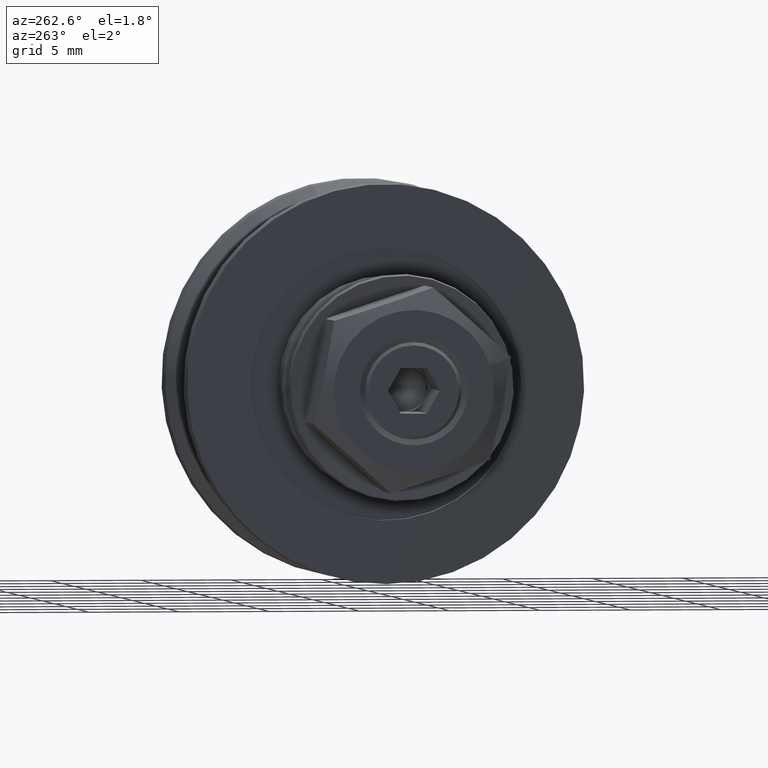
[diagram: clean part render]
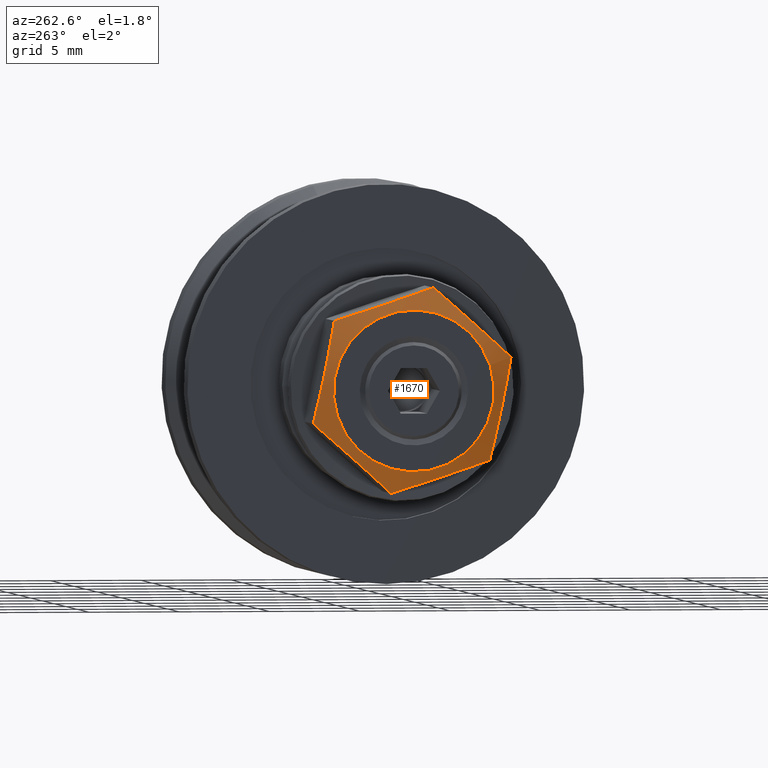
[diagram: same view with one face highlighted and labeled with its STEP entity id]
A machine part, auxiliary view. The second image highlights one B-rep face of the part: STEP entity #1670.
In plain terms, the highlighted conical surface has half-angle 60 deg.
Its self-contained STEP definition (entity closure, byte-faithful):
#37=(
BOUNDED_CURVE()
B_SPLINE_CURVE(2,(#3021,#3022,#3023),.UNSPECIFIED.,.F.,.F.)
B_SPLINE_CURVE_WITH_KNOTS((3,3),(0.,0.58421806903896),.UNSPECIFIED.)
CURVE()
GEOMETRIC_REPRESENTATION_ITEM()
RATIONAL_B_SPLINE_CURVE((1.,1.15470053837925,1.))
REPRESENTATION_ITEM('')
);
#38=(
BOUNDED_CURVE()
B_SPLINE_CURVE(2,(#3025,#3026,#3027),.UNSPECIFIED.,.F.,.F.)
B_SPLINE_CURVE_WITH_KNOTS((3,3),(0.,0.584218069038957),.UNSPECIFIED.)
CURVE()
GEOMETRIC_REPRESENTATION_ITEM()
RATIONAL_B_SPLINE_CURVE((1.,1.15470053837925,1.))
REPRESENTATION_ITEM('')
);
#39=(
BOUNDED_CURVE()
B_SPLINE_CURVE(2,(#3029,#3030,#3031),.UNSPECIFIED.,.F.,.F.)
B_SPLINE_CURVE_WITH_KNOTS((3,3),(0.,0.584218069038958),.UNSPECIFIED.)
CURVE()
GEOMETRIC_REPRESENTATION_ITEM()
RATIONAL_B_SPLINE_CURVE((1.,1.15470053837925,1.))
REPRESENTATION_ITEM('')
);
#40=(
BOUNDED_CURVE()
B_SPLINE_CURVE(2,(#3033,#3034,#3035),.UNSPECIFIED.,.F.,.F.)
B_SPLINE_CURVE_WITH_KNOTS((3,3),(0.,0.584218069038958),.UNSPECIFIED.)
CURVE()
GEOMETRIC_REPRESENTATION_ITEM()
RATIONAL_B_SPLINE_CURVE((1.,1.15470053837925,1.))
REPRESENTATION_ITEM('')
);
#41=(
BOUNDED_CURVE()
B_SPLINE_CURVE(2,(#3037,#3038,#3039),.UNSPECIFIED.,.F.,.F.)
B_SPLINE_CURVE_WITH_KNOTS((3,3),(0.,0.584218069038959),.UNSPECIFIED.)
CURVE()
GEOMETRIC_REPRESENTATION_ITEM()
RATIONAL_B_SPLINE_CURVE((1.,1.15470053837925,1.))
REPRESENTATION_ITEM('')
);
#42=(
BOUNDED_CURVE()
B_SPLINE_CURVE(2,(#3040,#3041,#3042),.UNSPECIFIED.,.F.,.F.)
B_SPLINE_CURVE_WITH_KNOTS((3,3),(0.,0.584218069038959),.UNSPECIFIED.)
CURVE()
GEOMETRIC_REPRESENTATION_ITEM()
RATIONAL_B_SPLINE_CURVE((1.,1.15470053837925,1.))
REPRESENTATION_ITEM('')
);
#288=FACE_OUTER_BOUND('',#406,.T.);
#406=EDGE_LOOP('',(#1526,#1527,#1528,#1529,#1530,#1531,#1532,#1533,#1534));
#526=LINE('',#3019,#646);
#646=VECTOR('',#2528,5.11175134594813);
#744=CIRCLE('',#2013,4.45);
#874=VERTEX_POINT('',#2989);
#881=VERTEX_POINT('',#3018);
#882=VERTEX_POINT('',#3020);
#883=VERTEX_POINT('',#3024);
#884=VERTEX_POINT('',#3028);
#885=VERTEX_POINT('',#3032);
#886=VERTEX_POINT('',#3036);
#1090=EDGE_CURVE('',#874,#874,#744,.T.);
#1098=EDGE_CURVE('',#874,#881,#526,.T.);
#1099=EDGE_CURVE('',#882,#881,#37,.T.);
#1100=EDGE_CURVE('',#883,#882,#38,.T.);
#1101=EDGE_CURVE('',#884,#883,#39,.T.);
#1102=EDGE_CURVE('',#885,#884,#40,.T.);
#1103=EDGE_CURVE('',#886,#885,#41,.T.);
#1104=EDGE_CURVE('',#881,#886,#42,.T.);
#1526=ORIENTED_EDGE('',*,*,#1090,.F.);
#1527=ORIENTED_EDGE('',*,*,#1098,.T.);
#1528=ORIENTED_EDGE('',*,*,#1099,.F.);
#1529=ORIENTED_EDGE('',*,*,#1100,.F.);
#1530=ORIENTED_EDGE('',*,*,#1101,.F.);
#1531=ORIENTED_EDGE('',*,*,#1102,.F.);
#1532=ORIENTED_EDGE('',*,*,#1103,.F.);
#1533=ORIENTED_EDGE('',*,*,#1104,.F.);
#1534=ORIENTED_EDGE('',*,*,#1098,.F.);
#1574=CONICAL_SURFACE('',#2015,5.11175134594813,1.0471975511966);
#1670=ADVANCED_FACE('',(#288),#1574,.T.);
#2013=AXIS2_PLACEMENT_3D('',#2990,#2521,#2522);
#2015=AXIS2_PLACEMENT_3D('',#3017,#2526,#2527);
#2521=DIRECTION('center_axis',(1.,0.,0.));
#2522=DIRECTION('ref_axis',(0.,1.,0.));
#2526=DIRECTION('center_axis',(-1.,0.,0.));
#2527=DIRECTION('ref_axis',(0.,1.,0.));
#2528=DIRECTION('',(-0.5,-0.866025403784439,1.06057523872491E-16));
#2989=CARTESIAN_POINT('',(5.2,-4.45,5.44967825620572E-16));
#2990=CARTESIAN_POINT('Origin',(5.2,0.,0.));
#3017=CARTESIAN_POINT('Origin',(4.81793768228025,0.,0.));
#3018=CARTESIAN_POINT('',(4.4358753645605,-5.77350269189626,5.55111512312578E-16));
#3019=CARTESIAN_POINT('',(4.81793768228025,-5.11175134594813,6.26008992385255E-16));
#3020=CARTESIAN_POINT('',(4.4358753645605,-2.88675134594811,-5.00000000000001));
#3021=CARTESIAN_POINT('Ctrl Pts',(4.4358753645605,-2.88675134594812,-5.00000000000001));
#3022=CARTESIAN_POINT('Ctrl Pts',(5.26920869789384,-4.33012701892219,-2.5));
#3023=CARTESIAN_POINT('Ctrl Pts',(4.4358753645605,-5.77350269189626,0.));
#3024=CARTESIAN_POINT('',(4.4358753645605,2.88675134594814,-4.99999999999999));
#3025=CARTESIAN_POINT('Ctrl Pts',(4.4358753645605,2.88675134594813,-5.));
#3026=CARTESIAN_POINT('Ctrl Pts',(5.26920869789383,1.13797860024079E-14,
-5.00000000000001));
#3027=CARTESIAN_POINT('Ctrl Pts',(4.4358753645605,-2.88675134594811,-5.00000000000001));
#3028=CARTESIAN_POINT('',(4.4358753645605,5.77350269189626,0.));
#3029=CARTESIAN_POINT('Ctrl Pts',(4.4358753645605,5.77350269189626,0.));
#3030=CARTESIAN_POINT('Ctrl Pts',(5.26920869789383,4.3301270189222,-2.5));
#3031=CARTESIAN_POINT('Ctrl Pts',(4.4358753645605,2.88675134594814,-4.99999999999999));
#3032=CARTESIAN_POINT('',(4.4358753645605,2.88675134594813,5.));
#3033=CARTESIAN_POINT('Ctrl Pts',(4.4358753645605,2.88675134594813,5.));
#3034=CARTESIAN_POINT('Ctrl Pts',(5.26920869789383,4.33012701892219,2.5));
#3035=CARTESIAN_POINT('Ctrl Pts',(4.4358753645605,5.77350269189625,6.89671964286303E-15));
#3036=CARTESIAN_POINT('',(4.4358753645605,-2.88675134594813,5.));
#3037=CARTESIAN_POINT('Ctrl Pts',(4.4358753645605,-2.88675134594813,5.));
#3038=CARTESIAN_POINT('Ctrl Pts',(5.26920869789384,0.,5.));
#3039=CARTESIAN_POINT('Ctrl Pts',(4.4358753645605,2.88675134594813,5.));
#3040=CARTESIAN_POINT('Ctrl Pts',(4.4358753645605,-5.77350269189626,6.26974512987548E-16));
#3041=CARTESIAN_POINT('Ctrl Pts',(5.26920869789383,-4.3301270189222,2.5));
#3042=CARTESIAN_POINT('Ctrl Pts',(4.4358753645605,-2.88675134594813,5.));